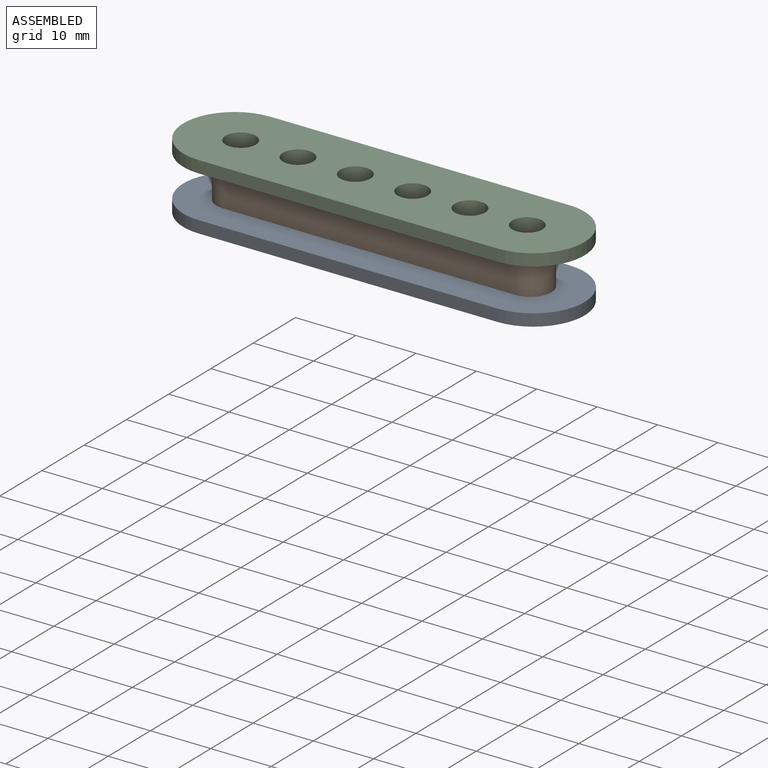
[diagram: assembled view]
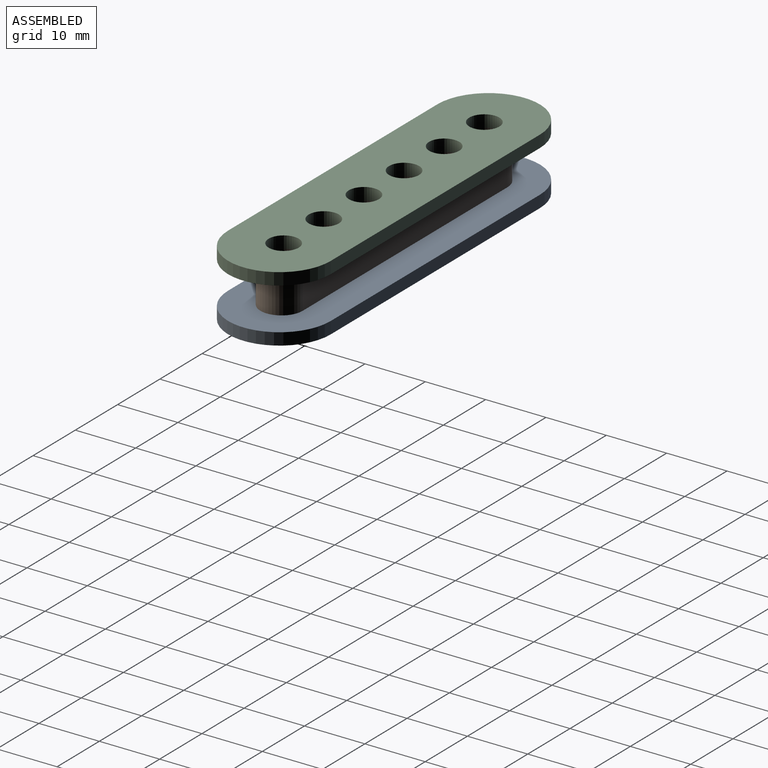
[diagram: assembled view, second angle]
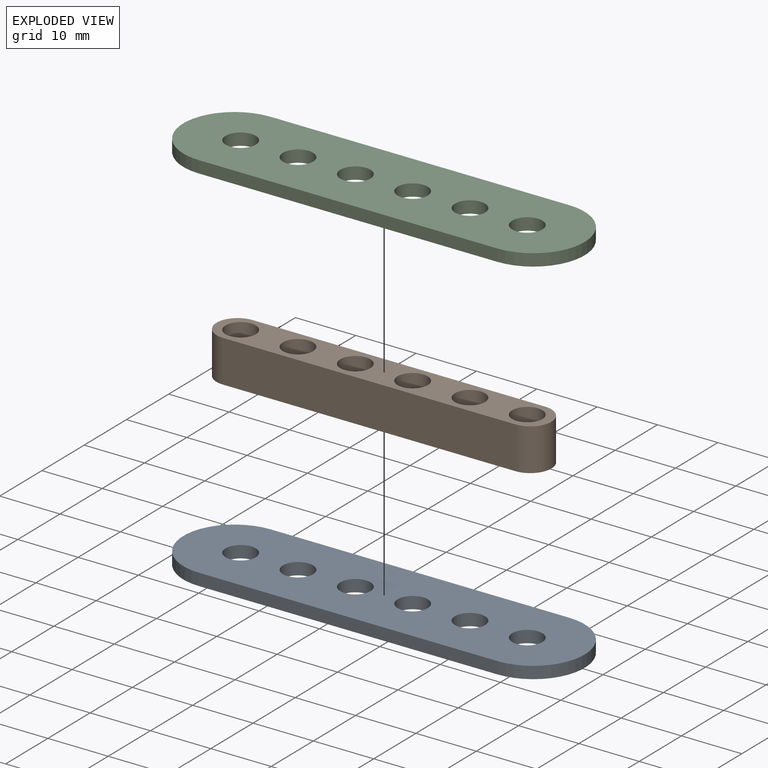
[diagram: exploded view]
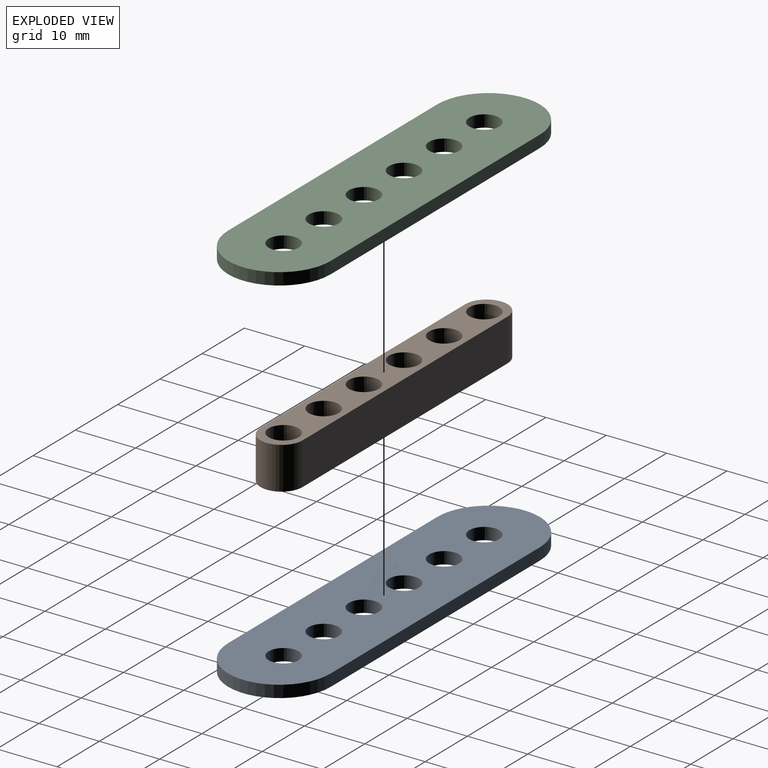
[diagram: exploded view, second angle]
ASSEMBLY  parts=3 mates=2
PART A: 12 faces, bbox 66.5x17x2 mm
  f0: plane 49.5x2mm, normal (0,1,0), area 99mm2, adj f1,f9,f10,f11
  f1: cylinder r=8.5mm len=17mm, axis (0,0,-1), area 53.4mm2, adj f0,f2,f10,f11
  f2: plane 49.5x2mm, normal (0,-1,0), area 99mm2, adj f1,f9,f10,f11
  f3: cylinder r=2.5mm len=5mm, axis (0,0,-1), area 31.4mm2, adj f10,f11
  f4: cylinder r=2.5mm len=5mm, axis (0,0,-1), area 31.4mm2, adj f10,f11
  f5: cylinder r=2.5mm len=5mm, axis (0,0,-1), area 31.4mm2, adj f10,f11
  f6: cylinder r=2.5mm len=5mm, axis (0,0,-1), area 31.4mm2, adj f10,f11
  f7: cylinder r=2.5mm len=5mm, axis (0,0,-1), area 31.4mm2, adj f10,f11
  f8: cylinder r=2.5mm len=5mm, axis (0,0,-1), area 31.4mm2, adj f10,f11
  f9: cylinder r=8.5mm len=17mm, axis (0,0,-1), area 53.4mm2, adj f0,f2,f10,f11
  f10: plane 66.5x17mm, normal (0,0,1), area 950.7mm2, adj f0,f1,f2,f3,f4,f5,f6,f7
  f11: plane 66.5x17mm, normal (0,0,-1), area 950.7mm2, adj f0,f1,f2,f3,f4,f5,f6,f7
PART B: 12 faces, bbox 55.5x7x7 mm
  f0: plane 48.5x7mm, normal (0,1,0), area 339.5mm2, adj f1,f9,f10,f11
  f1: cylinder r=3.5mm len=7mm, axis (0,0,-1), area 77mm2, adj f0,f2,f10,f11
  f2: plane 48.5x7mm, normal (0,-1,0), area 339.5mm2, adj f1,f9,f10,f11
  f3: cylinder r=2.5mm len=7mm, axis (0,0,-1), area 110mm2, adj f10,f11
  f4: cylinder r=2.5mm len=7mm, axis (0,0,-1), area 110mm2, adj f10,f11
  f5: cylinder r=2.5mm len=7mm, axis (0,0,-1), area 110mm2, adj f10,f11
  f6: cylinder r=2.5mm len=7mm, axis (0,0,-1), area 110mm2, adj f10,f11
  f7: cylinder r=2.5mm len=7mm, axis (0,0,-1), area 110mm2, adj f10,f11
  f8: cylinder r=2.5mm len=7mm, axis (0,0,-1), area 110mm2, adj f10,f11
  f9: cylinder r=3.5mm len=7mm, axis (0,0,-1), area 77mm2, adj f0,f2,f10,f11
  f10: plane 55.5x7mm, normal (0,0,1), area 260.2mm2, adj f0,f1,f2,f3,f4,f5,f6,f7
  f11: plane 55.5x7mm, normal (0,0,-1), area 260.2mm2, adj f0,f1,f2,f3,f4,f5,f6,f7
PART C: 12 faces, bbox 66.5x17x2 mm
  f0: plane 49.5x2mm, normal (0,1,0), area 99mm2, adj f1,f9,f10,f11
  f1: cylinder r=8.5mm len=17mm, axis (0,0,-1), area 53.4mm2, adj f0,f2,f10,f11
  f2: plane 49.5x2mm, normal (0,-1,0), area 99mm2, adj f1,f9,f10,f11
  f3: cylinder r=2.5mm len=5mm, axis (0,0,-1), area 31.4mm2, adj f10,f11
  f4: cylinder r=2.5mm len=5mm, axis (0,0,-1), area 31.4mm2, adj f10,f11
  f5: cylinder r=2.5mm len=5mm, axis (0,0,-1), area 31.4mm2, adj f10,f11
  f6: cylinder r=2.5mm len=5mm, axis (0,0,-1), area 31.4mm2, adj f10,f11
  f7: cylinder r=2.5mm len=5mm, axis (0,0,-1), area 31.4mm2, adj f10,f11
  f8: cylinder r=2.5mm len=5mm, axis (0,0,-1), area 31.4mm2, adj f10,f11
  f9: cylinder r=8.5mm len=17mm, axis (0,0,-1), area 53.4mm2, adj f0,f2,f10,f11
  f10: plane 66.5x17mm, normal (0,0,1), area 950.7mm2, adj f0,f1,f2,f3,f4,f5,f6,f7
  f11: plane 66.5x17mm, normal (0,0,-1), area 950.7mm2, adj f0,f1,f2,f3,f4,f5,f6,f7
PLACE A t=(-8.5,0,-2)mm
PLACE B t=(-8.5,0,-2)mm
PLACE C t=(-8.5,0,-2)mm
MATE fastened C.f3 <-> B.f8  axis (0,0,-1) through (1,8.5,7)mm
MATE fastened A.f3 <-> B.f8  axis (0,0,1) through (1,8.5,0)mm
